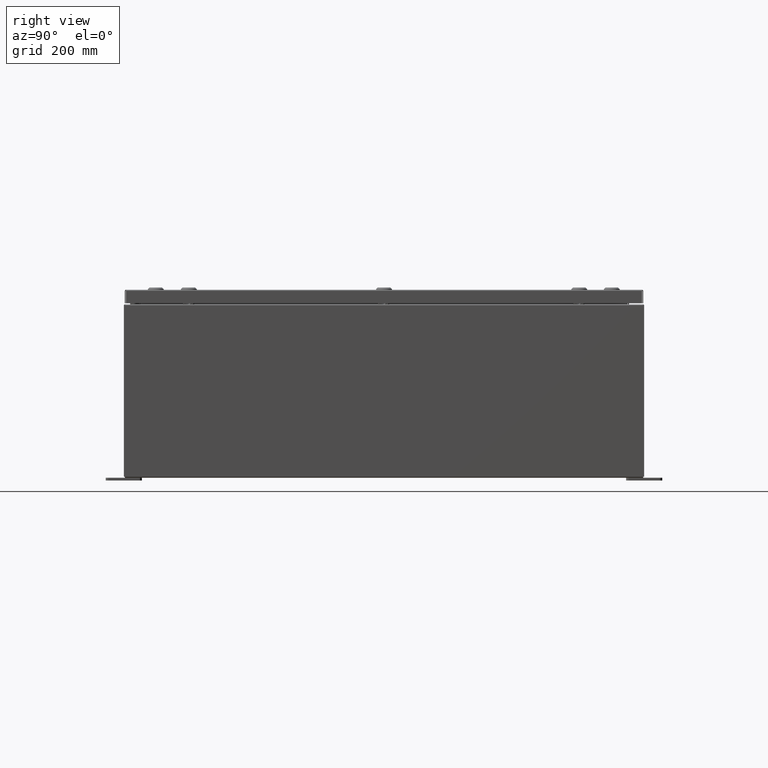
[diagram: clean part render]
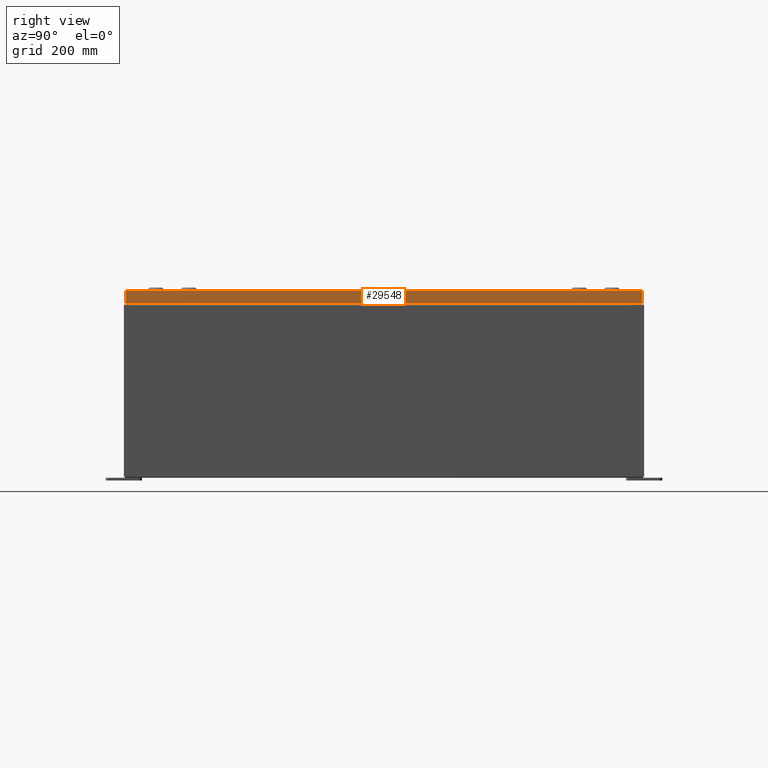
[diagram: same view with one face highlighted and labeled with its STEP entity id]
A machine part, right view. The second image highlights one B-rep face of the part: STEP entity #29548.
In plain terms, the highlighted planar face has unit normal (1, 0, 0).
Its self-contained STEP definition (entity closure, byte-faithful):
#478 = DIRECTION ( 'NONE',  ( -2.532419924601866100E-015, -6.982962677686265900E-015, 1.000000000000000000 ) ) ;
#3737 = VERTEX_POINT ( 'NONE', #30981 ) ;
#4764 = VECTOR ( 'NONE', #27079, 39.37007874015748100 ) ;
#8863 = DIRECTION ( 'NONE',  ( 1.000000000000000000, 0.0000000000000000000, 2.532419924601866100E-015 ) ) ;
#12269 = DIRECTION ( 'NONE',  ( -2.532419924601866100E-015, -6.982962677686265900E-015, 1.000000000000000000 ) ) ;
#14009 = LINE ( 'NONE', #19171, #27508 ) ;
#17801 = CARTESIAN_POINT ( 'NONE',  ( 14.93749999999999800, 0.0000000000000000000, 3.808883627975194400E-014 ) ) ;
#18220 = FACE_OUTER_BOUND ( 'NONE', #44673, .T. ) ;
#18950 = ORIENTED_EDGE ( 'NONE', *, *, #52980, .T. ) ;
#19085 = CARTESIAN_POINT ( 'NONE',  ( 14.93750000000000000, 17.84865786437627500, -0.9376999999999997600 ) ) ;
#19171 = CARTESIAN_POINT ( 'NONE',  ( 14.93750000000000000, -17.93750000000000000, -0.9376999999999997600 ) ) ;
#22593 = ORIENTED_EDGE ( 'NONE', *, *, #42503, .F. ) ;
#24256 = DIRECTION ( 'NONE',  ( 0.0000000000000000000, -1.000000000000000000, 0.0000000000000000000 ) ) ;
#25616 = VERTEX_POINT ( 'NONE', #61444 ) ;
#25648 = AXIS2_PLACEMENT_3D ( 'NONE', #17801, #8863, #44471 ) ;
#26125 = VERTEX_POINT ( 'NONE', #19085 ) ;
#26546 = LINE ( 'NONE', #37693, #63978 ) ;
#27079 = DIRECTION ( 'NONE',  ( 0.0000000000000000000, -1.000000000000000000, 0.0000000000000000000 ) ) ;
#27508 = VECTOR ( 'NONE', #24256, 39.37007874015748100 ) ;
#29548 = ADVANCED_FACE ( 'NONE', ( #18220 ), #38113, .T. ) ;
#30924 = CARTESIAN_POINT ( 'NONE',  ( 14.93749999999999800, 17.84865786437626800, 1.627253479934829100E-013 ) ) ;
#30981 = CARTESIAN_POINT ( 'NONE',  ( 14.93750000000000000, -17.84865786437626400, -0.9376999999999997600 ) ) ;
#31421 = EDGE_CURVE ( 'NONE', #3737, #25616, #26546, .T. ) ;
#31942 = ORIENTED_EDGE ( 'NONE', *, *, #31421, .F. ) ;
#37693 = CARTESIAN_POINT ( 'NONE',  ( 14.93749999999999800, -17.84865786437627100, -0.07469999999999980800 ) ) ;
#38036 = EDGE_CURVE ( 'NONE', #65427, #25616, #43796, .T. ) ;
#38113 = PLANE ( 'NONE',  #25648 ) ;
#42503 = EDGE_CURVE ( 'NONE', #26125, #3737, #14009, .T. ) ;
#43796 = LINE ( 'NONE', #62712, #4764 ) ;
#44471 = DIRECTION ( 'NONE',  ( 2.532419924601866100E-015, 0.0000000000000000000, -1.000000000000000000 ) ) ;
#44673 = EDGE_LOOP ( 'NONE', ( #31942, #22593, #18950, #54140 ) ) ;
#47210 = LINE ( 'NONE', #30924, #50420 ) ;
#50420 = VECTOR ( 'NONE', #478, 39.37007874015748100 ) ;
#52980 = EDGE_CURVE ( 'NONE', #26125, #65427, #47210, .T. ) ;
#54140 = ORIENTED_EDGE ( 'NONE', *, *, #38036, .T. ) ;
#59445 = CARTESIAN_POINT ( 'NONE',  ( 14.93749999999999800, 17.84865786437626800, -0.08770000000000008300 ) ) ;
#61444 = CARTESIAN_POINT ( 'NONE',  ( 14.93749999999999800, -17.84865786437627100, -0.08770000000000008300 ) ) ;
#62712 = CARTESIAN_POINT ( 'NONE',  ( 14.93749999999999800, 0.0000000000000000000, -0.08770000000000008300 ) ) ;
#63978 = VECTOR ( 'NONE', #12269, 39.37007874015748100 ) ;
#65427 = VERTEX_POINT ( 'NONE', #59445 ) ;